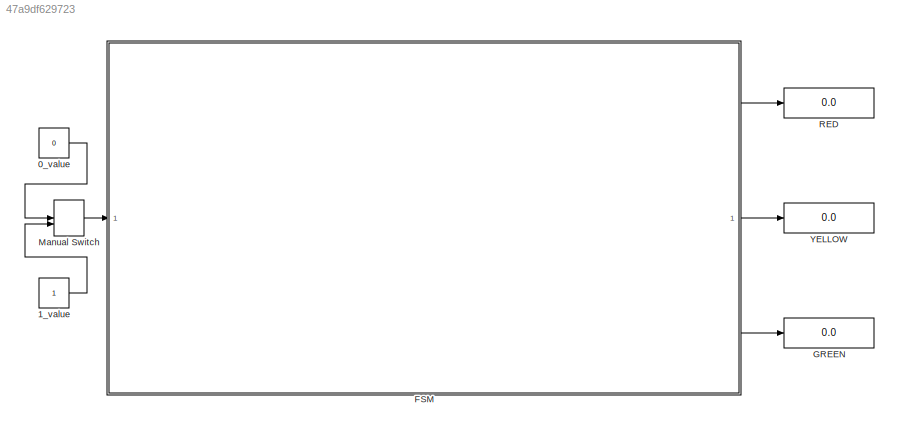
MODEL slx_47a9df629723
KIND model
CONFIG AbsTol = auto
CONFIG EnableMultiTasking = off
CONFIG FixedStep = 0.1
CONFIG MaxStep = auto
CONFIG MinStep = auto
CONFIG RelTol = 1e-3
CONFIG SampleTimeConstraint = Unconstrained
CONFIG SolverName = FixedStepDiscrete
CONFIG StartTime = 0.0
CONFIG StopTime = 10.0
BLOCK [Constant] 0_value
  OutDataTypeStr = boolean
  Value = 0
BLOCK [Constant] 1_value
  OutDataTypeStr = boolean
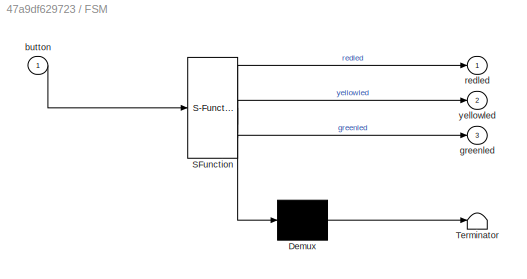
BLOCK [SubSystem] FSM
  ErrorFcn = Stateflow.Translate.translate
  PermitHierarchicalResolution = ExplicitOnly
  SFBlockType = Chart
  TreatAsAtomicUnit = on
BLOCK [Demux] FSM/ Demux 
  Outputs = 1
BLOCK [S-Function] FSM/ SFunction 
  EnableBusSupport = on
  FunctionName = sf_sfun
  PortCounts = [1 4]
  SFcnIsStateOwnerBlock = off
  SFunctionDeploymentMode = off
  Tag = Stateflow S-Function 3
BLOCK [Terminator] FSM/ Terminator 
BLOCK [Inport] FSM/button
BLOCK [Outport] FSM/greenled
  Port = 3
BLOCK [Outport] FSM/redled
BLOCK [Outport] FSM/yellowled
  Port = 2
BLOCK [Display] GREEN
  Decimation = 1
BLOCK [ManualSwitch] Manual Switch
BLOCK [Display] RED
  Decimation = 1
BLOCK [Display] YELLOW
  Decimation = 1
LINE 0_value:1 -> Manual Switch:1
LINE 1_value:1 -> Manual Switch:2
LINE FSM:1 -> RED:1
LINE FSM:2 -> YELLOW:1
LINE FSM:3 -> GREEN:1
LINE Manual Switch:1 -> FSM:1
CHART FSM states=3 transitions=4
  STATE_LABEL 'GREEN\nen: greenled = ON;\nex: greenled = OFF;'
  STATE_LABEL 'YELLOW\nen: yellowled = ON;\nex: yellowled = OFF;'
  STATE_LABEL 'RED\nen: redled = ON;\nex: redled = OFF;'
CHART  states=0 transitions=0
